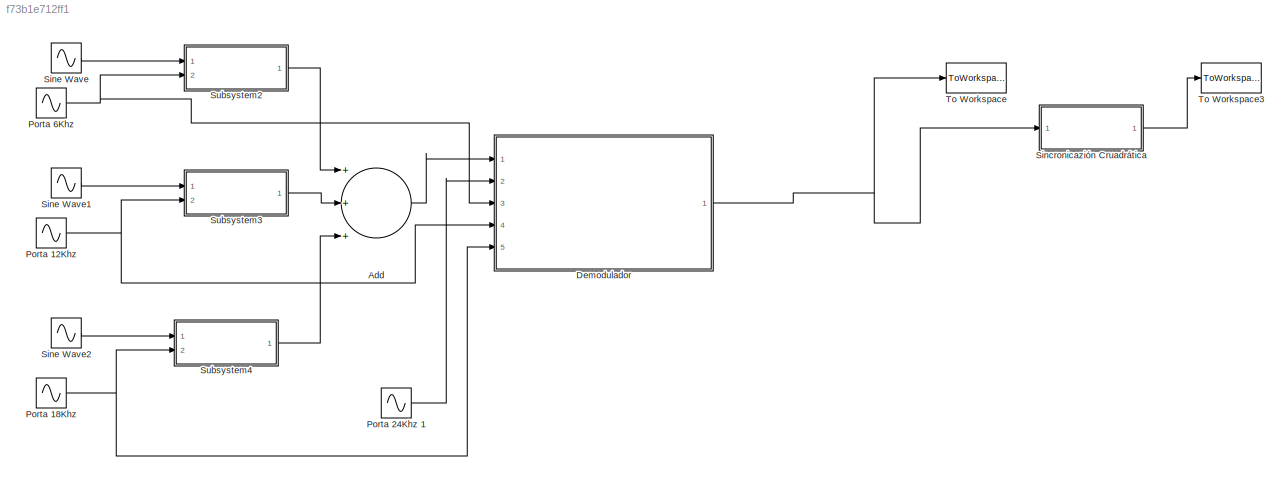
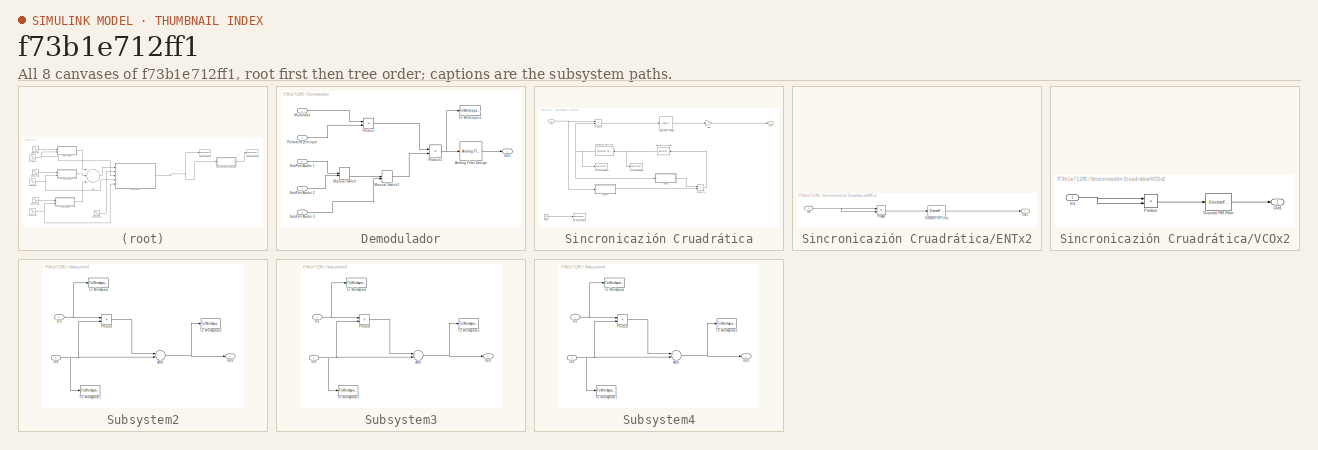
[diagram: thumbnail index - all 8 canvases of the model, root first then tree order]
MODEL slx_f73b1e712ff1
KIND model
CONFIG AbsTol = auto
CONFIG EnableMultiTasking = off
CONFIG FixedStep = 1e-6
CONFIG MaxStep = auto
CONFIG MinStep = auto
CONFIG RelTol = 1e-3
CONFIG SampleTimeConstraint = Unconstrained
CONFIG Solver = FixedStepAuto
CONFIG SolverName = FixedStepAuto
CONFIG StartTime = 0.0
CONFIG StopTime = 3
BLOCK [Sum] Add
  InputSameDT = off
  Inputs = +++
  OutDataTypeStr = Inherit: Inherit via internal rule
  Ports = [3, 1]
  SaturateOnIntegerOverflow = off
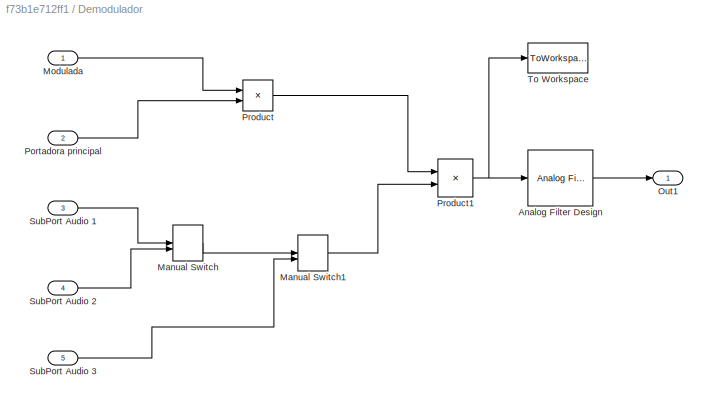
BLOCK [SubSystem] Demodulador
  Ports = [5, 1]
  RequestExecContextInheritance = off
BLOCK [Reference] Demodulador/Analog Filter Design  REF=dsparch4/Analog
Filter Design
  Ports = [1, 1]
  SourceBlock = dsparch4/Analog\nFilter Design
  SourceProductBaseCode = DS
  SourceProductName = DSP System Toolbox
  SourceType = Analog Filter Design
BLOCK [ManualSwitch] Demodulador/Manual Switch
BLOCK [ManualSwitch] Demodulador/Manual Switch1
BLOCK [Inport] Demodulador/Modulada
  IconDisplay = Port number
BLOCK [Outport] Demodulador/Out1
  IconDisplay = Port number
BLOCK [Inport] Demodulador/Portadora principal
  IconDisplay = Port number
  Port = 2
BLOCK [Product] Demodulador/Product
  InputSameDT = off
  OutDataTypeStr = Inherit: Inherit via internal rule
  Ports = [2, 1]
  RndMeth = Floor
  SaturateOnIntegerOverflow = off
BLOCK [Product] Demodulador/Product1
  InputSameDT = off
  OutDataTypeStr = Inherit: Inherit via internal rule
  Ports = [2, 1]
  RndMeth = Floor
  SaturateOnIntegerOverflow = off
BLOCK [Inport] Demodulador/SubPort Audio 1
  IconDisplay = Port number
  Port = 3
BLOCK [Inport] Demodulador/SubPort Audio 2
  IconDisplay = Port number
  Port = 4
BLOCK [Inport] Demodulador/SubPort Audio 3
  IconDisplay = Port number
  Port = 5
BLOCK [ToWorkspace] Demodulador/To Workspace
  FixptAsFi = on
  MaxDataPoints = inf
  Ports = [1]
  SampleTime = -1
  Save2DSignal = 3-D array (concatenate along third dimension)
  VariableName = simout
BLOCK [Sin] Porta 12Khz 
  Frequency = 2*pi*12000
  Ports = [0, 1]
BLOCK [Sin] Porta 18Khz 
  Frequency = 2*pi*18000
  Ports = [0, 1]
BLOCK [Sin] Porta 24Khz 1
  Frequency = 2*pi*24000
  Ports = [0, 1]
BLOCK [Sin] Porta 6Khz 
  Frequency = 2*pi*6000
  Ports = [0, 1]
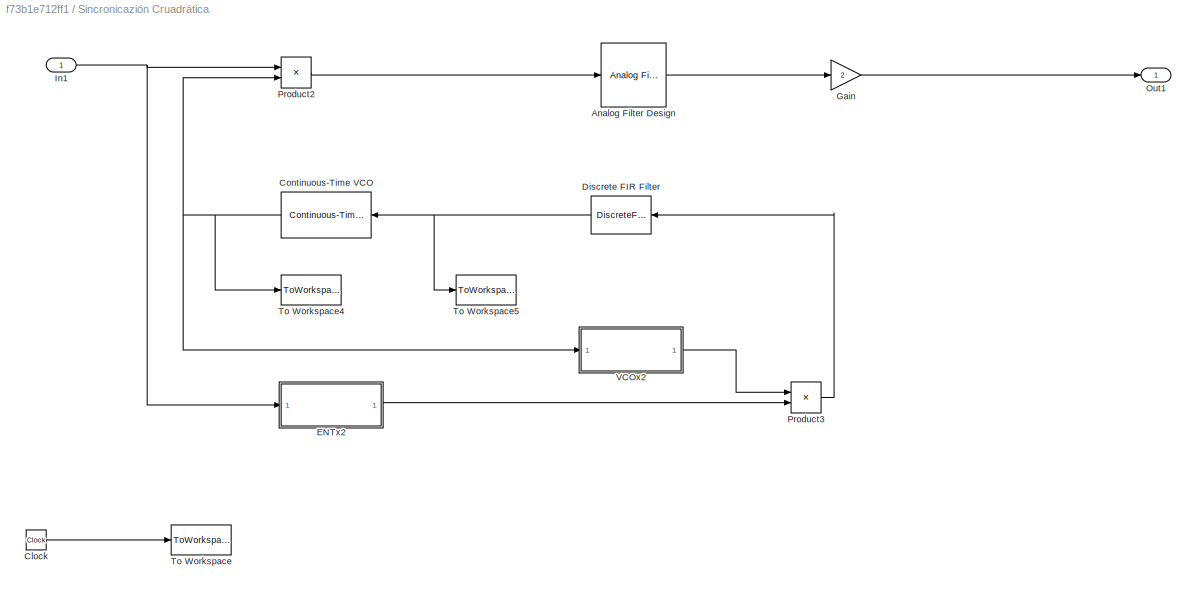
BLOCK [SubSystem] Sincronicazión Cruadrática
  Ports = [1, 1]
  RequestExecContextInheritance = off
BLOCK [Reference] Sincronicazión Cruadrática/Analog Filter Design  REF=dsparch4/Analog
Filter Design
  Ports = [1, 1]
  SourceBlock = dsparch4/Analog\nFilter Design
  SourceProductBaseCode = DS
  SourceProductName = DSP System Toolbox
  SourceType = Analog Filter Design
BLOCK [Clock] Sincronicazión Cruadrática/Clock
BLOCK [Reference] Sincronicazión Cruadrática/Continuous-Time VCO  REF=commsynccomp2/Continuous-Time
VCO
  Ports = [1, 1]
  SourceBlock = commsynccomp2/Continuous-Time\nVCO
  SourceProductBaseCode = CM
  SourceProductName = Communications System Toolbox
  SourceType = Continuous-Time VCO
BLOCK [DiscreteFir] Sincronicazión Cruadrática/Discrete FIR Filter
  Coefficients = filtrovco
  InputPortMap = u0
  OutputPortMap = o0
  Ports = [1, 1]
BLOCK [SubSystem] Sincronicazión Cruadrática/ENTx2
  Ports = [1, 1]
  RequestExecContextInheritance = off
BLOCK [DiscreteFir] Sincronicazión Cruadrática/ENTx2/Discrete FIR Filter
  InputPortMap = u0
  OutputPortMap = o0
  Ports = [1, 1]
BLOCK [Inport] Sincronicazión Cruadrática/ENTx2/In1
  IconDisplay = Port number
BLOCK [Outport] Sincronicazión Cruadrática/ENTx2/Out1
  IconDisplay = Port number
BLOCK [Product] Sincronicazión Cruadrática/ENTx2/Product
  InputSameDT = off
  OutDataTypeStr = Inherit: Inherit via internal rule
  Ports = [2, 1]
  RndMeth = Floor
  SaturateOnIntegerOverflow = off
BLOCK [Gain] Sincronicazión Cruadrática/Gain
  Gain = 2
  OutDataTypeStr = Inherit: Inherit via internal rule
  ParamDataTypeStr = Inherit: Inherit via internal rule
  SaturateOnIntegerOverflow = off
BLOCK [Inport] Sincronicazión Cruadrática/In1
  IconDisplay = Port number
BLOCK [Outport] Sincronicazión Cruadrática/Out1
  IconDisplay = Port number
BLOCK [Product] Sincronicazión Cruadrática/Product2
  InputSameDT = off
  OutDataTypeStr = Inherit: Inherit via internal rule
  Ports = [2, 1]
  RndMeth = Floor
  SaturateOnIntegerOverflow = off
BLOCK [Product] Sincronicazión Cruadrática/Product3
  InputSameDT = off
  OutDataTypeStr = Inherit: Inherit via internal rule
  Ports = [2, 1]
  RndMeth = Floor
  SaturateOnIntegerOverflow = off
BLOCK [ToWorkspace] Sincronicazión Cruadrática/To Workspace
  FixptAsFi = on
  MaxDataPoints = inf
  Ports = [1]
  SampleTime = -1
  Save2DSignal = 3-D array (concatenate along third dimension)
  VariableName = t
BLOCK [ToWorkspace] Sincronicazión Cruadrática/To Workspace4
  FixptAsFi = on
  MaxDataPoints = inf
  Ports = [1]
  SampleTime = -1
  Save2DSignal = 3-D array (concatenate along third dimension)
  VariableName = SalidaVCO
BLOCK [ToWorkspace] Sincronicazión Cruadrática/To Workspace5
  FixptAsFi = on
  MaxDataPoints = inf
  Ports = [1]
  SampleTime = -1
  Save2DSignal = 3-D array (concatenate along third dimension)
  VariableName = EntradaVCO
BLOCK [SubSystem] Sincronicazión Cruadrática/VCOx2
  Ports = [1, 1]
  RequestExecContextInheritance = off
BLOCK [DiscreteFir] Sincronicazión Cruadrática/VCOx2/Discrete FIR Filter
  InputPortMap = u0
  OutputPortMap = o0
  Ports = [1, 1]
BLOCK [Inport] Sincronicazión Cruadrática/VCOx2/In1
  IconDisplay = Port number
BLOCK [Outport] Sincronicazión Cruadrática/VCOx2/Out1
  IconDisplay = Port number
BLOCK [Product] Sincronicazión Cruadrática/VCOx2/Product
  InputSameDT = off
  OutDataTypeStr = Inherit: Inherit via internal rule
  Ports = [2, 1]
  RndMeth = Floor
  SaturateOnIntegerOverflow = off
BLOCK [Sin] Sine Wave
  Frequency = 100*pi*2
  Phase = pi/2
  Ports = [0, 1]
BLOCK [Sin] Sine Wave1
  Frequency = 500*pi*2
  Phase = pi/2
  Ports = [0, 1]
BLOCK [Sin] Sine Wave2
  Frequency = 250*pi*2
  Phase = pi/2
  Ports = [0, 1]
BLOCK [SubSystem] Subsystem2
  Ports = [2, 1]
  RequestExecContextInheritance = off
BLOCK [Sum] Subsystem2/Add
  InputSameDT = off
  OutDataTypeStr = Inherit: Inherit via internal rule
  Ports = [2, 1]
  SaturateOnIntegerOverflow = off
BLOCK [Inport] Subsystem2/In3
  IconDisplay = Port number
BLOCK [Inport] Subsystem2/In4
  IconDisplay = Port number
  Port = 2
BLOCK [Outport] Subsystem2/Out2
  IconDisplay = Port number
BLOCK [Product] Subsystem2/Product
  InputSameDT = off
  OutDataTypeStr = Inherit: Inherit via internal rule
  Ports = [2, 1]
  RndMeth = Floor
  SaturateOnIntegerOverflow = off
BLOCK [ToWorkspace] Subsystem2/To Workspace
  FixptAsFi = on
  MaxDataPoints = inf
  Ports = [1]
  SampleTime = -1
  Save2DSignal = 3-D array (concatenate along third dimension)
  VariableName = sentrada1
BLOCK [ToWorkspace] Subsystem2/To Workspace1
  FixptAsFi = on
  MaxDataPoints = inf
  Ports = [1]
  SampleTime = -1
  Save2DSignal = 3-D array (concatenate along third dimension)
  VariableName = port6
BLOCK [ToWorkspace] Subsystem2/To Workspace2
  FixptAsFi = on
  MaxDataPoints = inf
  Ports = [1]
  SampleTime = -1
  Save2DSignal = 3-D array (concatenate along third dimension)
  VariableName = amcp1
BLOCK [SubSystem] Subsystem3
  Ports = [2, 1]
  RequestExecContextInheritance = off
BLOCK [Sum] Subsystem3/Add
  InputSameDT = off
  OutDataTypeStr = Inherit: Inherit via internal rule
  Ports = [2, 1]
  SaturateOnIntegerOverflow = off
BLOCK [Inport] Subsystem3/In1
  IconDisplay = Port number
BLOCK [Inport] Subsystem3/In2
  IconDisplay = Port number
  Port = 2
BLOCK [Outport] Subsystem3/Out1
  IconDisplay = Port number
BLOCK [Product] Subsystem3/Product
  InputSameDT = off
  OutDataTypeStr = Inherit: Inherit via internal rule
  Ports = [2, 1]
  RndMeth = Floor
  SaturateOnIntegerOverflow = off
BLOCK [ToWorkspace] Subsystem3/To Workspace
  FixptAsFi = on
  MaxDataPoints = inf
  Ports = [1]
  SampleTime = -1
  Save2DSignal = 3-D array (concatenate along third dimension)
  VariableName = sentrada2
BLOCK [ToWorkspace] Subsystem3/To Workspace1
  FixptAsFi = on
  MaxDataPoints = inf
  Ports = [1]
  SampleTime = -1
  Save2DSignal = 3-D array (concatenate along third dimension)
  VariableName = port12
BLOCK [ToWorkspace] Subsystem3/To Workspace2
  FixptAsFi = on
  MaxDataPoints = inf
  Ports = [1]
  SampleTime = -1
  Save2DSignal = 3-D array (concatenate along third dimension)
  VariableName = amcp2
BLOCK [SubSystem] Subsystem4
  Ports = [2, 1]
  RequestExecContextInheritance = off
BLOCK [Sum] Subsystem4/Add
  InputSameDT = off
  OutDataTypeStr = Inherit: Inherit via internal rule
  Ports = [2, 1]
  SaturateOnIntegerOverflow = off
BLOCK [Inport] Subsystem4/In1
  IconDisplay = Port number
BLOCK [Inport] Subsystem4/In2
  IconDisplay = Port number
  Port = 2
BLOCK [Outport] Subsystem4/Out1
  IconDisplay = Port number
BLOCK [Product] Subsystem4/Product
  InputSameDT = off
  OutDataTypeStr = Inherit: Inherit via internal rule
  Ports = [2, 1]
  RndMeth = Floor
  SaturateOnIntegerOverflow = off
BLOCK [ToWorkspace] Subsystem4/To Workspace
  FixptAsFi = on
  MaxDataPoints = inf
  Ports = [1]
  SampleTime = -1
  Save2DSignal = 3-D array (concatenate along third dimension)
  VariableName = sentrada3
BLOCK [ToWorkspace] Subsystem4/To Workspace1
  FixptAsFi = on
  MaxDataPoints = inf
  Ports = [1]
  SampleTime = -1
  Save2DSignal = 3-D array (concatenate along third dimension)
  VariableName = port18
BLOCK [ToWorkspace] Subsystem4/To Workspace2
  FixptAsFi = on
  MaxDataPoints = inf
  Ports = [1]
  SampleTime = -1
  Save2DSignal = 3-D array (concatenate along third dimension)
  VariableName = amcp3
BLOCK [ToWorkspace] To Workspace
  FixptAsFi = on
  MaxDataPoints = inf
  Ports = [1]
  SampleTime = -1
  Save2DSignal = 3-D array (concatenate along third dimension)
  VariableName = EntMod1
BLOCK [ToWorkspace] To Workspace3
  FixptAsFi = on
  MaxDataPoints = inf
  Ports = [1]
  SampleTime = -1
  Save2DSignal = 3-D array (concatenate along third dimension)
  VariableName = SalMod1
LINE Add:1 -> Demodulador:1
LINE Demodulador/Analog Filter Design:1 -> Demodulador/Out1:1
LINE Demodulador/Manual Switch1:1 -> Demodulador/Product1:2
LINE Demodulador/Manual Switch:1 -> Demodulador/Manual Switch1:1
LINE Demodulador/Modulada:1 -> Demodulador/Product:1
LINE Demodulador/Portadora principal:1 -> Demodulador/Product:2
NET Demodulador/Product1:1 -> Demodulador/Analog Filter Design:1, Demodulador/To Workspace:1
LINE Demodulador/Product:1 -> Demodulador/Product1:1
LINE Demodulador/SubPort Audio 1:1 -> Demodulador/Manual Switch:1
LINE Demodulador/SubPort Audio 2:1 -> Demodulador/Manual Switch:2
LINE Demodulador/SubPort Audio 3:1 -> Demodulador/Manual Switch1:2
NET Demodulador:1 -> Sincronicazión Cruadrática:1, To Workspace:1
NET Porta 12Khz :1 -> Demodulador:4, Subsystem3:2
NET Porta 18Khz :1 -> Demodulador:5, Subsystem4:2
LINE Porta 24Khz 1:1 -> Demodulador:2
NET Porta 6Khz :1 -> Demodulador:3, Subsystem2:2
LINE Sincronicazión Cruadrática/Analog Filter Design:1 -> Sincronicazión Cruadrática/Gain:1
LINE Sincronicazión Cruadrática/Clock:1 -> Sincronicazión Cruadrática/To Workspace:1
NET Sincronicazión Cruadrática/Continuous-Time VCO:1 -> Sincronicazión Cruadrática/Product2:2, Sincronicazión Cruadrática/To Workspace4:1, Sincronicazión Cruadrática/VCOx2:1
NET Sincronicazión Cruadrática/Discrete FIR Filter:1 -> Sincronicazión Cruadrática/Continuous-Time VCO:1, Sincronicazión Cruadrática/To Workspace5:1
LINE Sincronicazión Cruadrática/ENTx2/Discrete FIR Filter:1 -> Sincronicazión Cruadrática/ENTx2/Out1:1
NET Sincronicazión Cruadrática/ENTx2/In1:1 -> Sincronicazión Cruadrática/ENTx2/Product:1, Sincronicazión Cruadrática/ENTx2/Product:2
LINE Sincronicazión Cruadrática/ENTx2/Product:1 -> Sincronicazión Cruadrática/ENTx2/Discrete FIR Filter:1
LINE Sincronicazión Cruadrática/ENTx2:1 -> Sincronicazión Cruadrática/Product3:2
LINE Sincronicazión Cruadrática/Gain:1 -> Sincronicazión Cruadrática/Out1:1
NET Sincronicazión Cruadrática/In1:1 -> Sincronicazión Cruadrática/ENTx2:1, Sincronicazión Cruadrática/Product2:1
LINE Sincronicazión Cruadrática/Product2:1 -> Sincronicazión Cruadrática/Analog Filter Design:1
LINE Sincronicazión Cruadrática/Product3:1 -> Sincronicazión Cruadrática/Discrete FIR Filter:1
LINE Sincronicazión Cruadrática/VCOx2/Discrete FIR Filter:1 -> Sincronicazión Cruadrática/VCOx2/Out1:1
NET Sincronicazión Cruadrática/VCOx2/In1:1 -> Sincronicazión Cruadrática/VCOx2/Product:1, Sincronicazión Cruadrática/VCOx2/Product:2
LINE Sincronicazión Cruadrática/VCOx2/Product:1 -> Sincronicazión Cruadrática/VCOx2/Discrete FIR Filter:1
LINE Sincronicazión Cruadrática/VCOx2:1 -> Sincronicazión Cruadrática/Product3:1
LINE Sincronicazión Cruadrática:1 -> To Workspace3:1
LINE Sine Wave1:1 -> Subsystem3:1
LINE Sine Wave2:1 -> Subsystem4:1
LINE Sine Wave:1 -> Subsystem2:1
NET Subsystem2/Add:1 -> Subsystem2/Out2:1, Subsystem2/To Workspace2:1
NET Subsystem2/In3:1 -> Subsystem2/Product:1, Subsystem2/To Workspace:1
NET Subsystem2/In4:1 -> Subsystem2/Add:2, Subsystem2/Product:2, Subsystem2/To Workspace1:1
LINE Subsystem2/Product:1 -> Subsystem2/Add:1
LINE Subsystem2:1 -> Add:1
NET Subsystem3/Add:1 -> Subsystem3/Out1:1, Subsystem3/To Workspace2:1
NET Subsystem3/In1:1 -> Subsystem3/Product:1, Subsystem3/To Workspace:1
NET Subsystem3/In2:1 -> Subsystem3/Add:2, Subsystem3/Product:2, Subsystem3/To Workspace1:1
LINE Subsystem3/Product:1 -> Subsystem3/Add:1
LINE Subsystem3:1 -> Add:2
NET Subsystem4/Add:1 -> Subsystem4/Out1:1, Subsystem4/To Workspace2:1
NET Subsystem4/In1:1 -> Subsystem4/Product:1, Subsystem4/To Workspace:1
NET Subsystem4/In2:1 -> Subsystem4/Add:2, Subsystem4/Product:2, Subsystem4/To Workspace1:1
LINE Subsystem4/Product:1 -> Subsystem4/Add:1
LINE Subsystem4:1 -> Add:3
note: NET lines group one-source signal fan-out (src -> all destinations, sorted); 1:1 wires keep LINE
